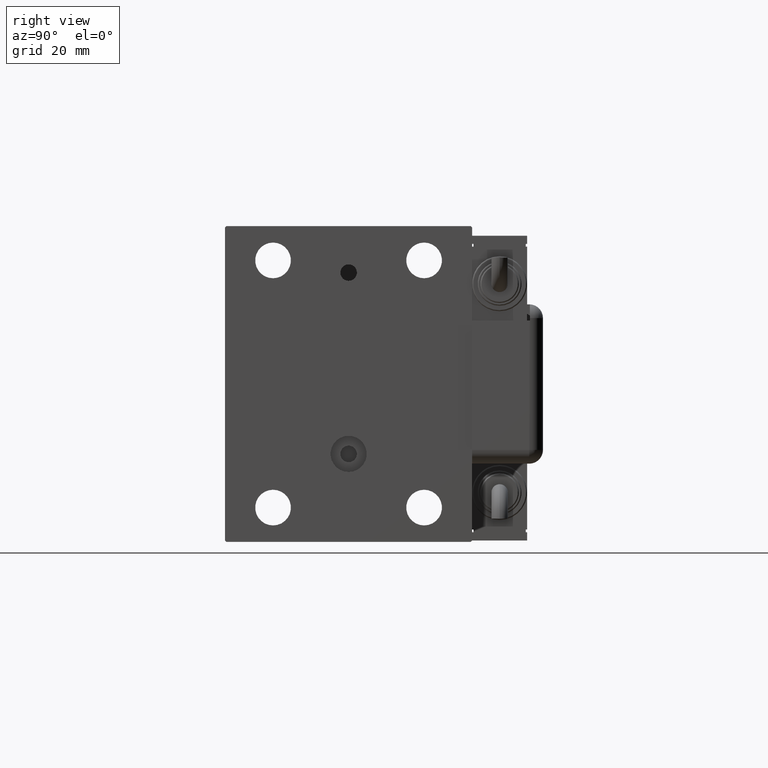
[diagram: clean part render]
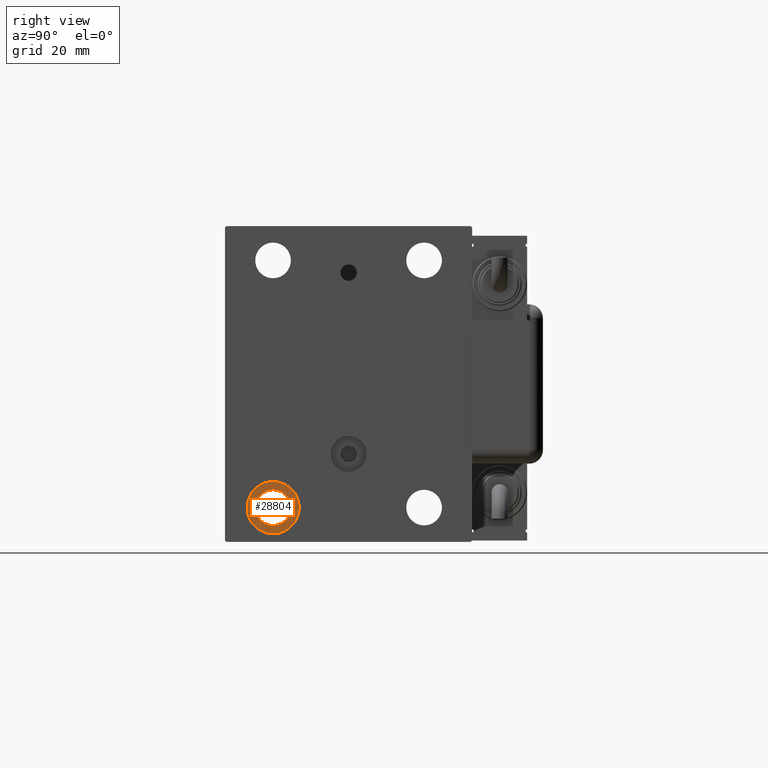
[diagram: same view with one face highlighted and labeled with its STEP entity id]
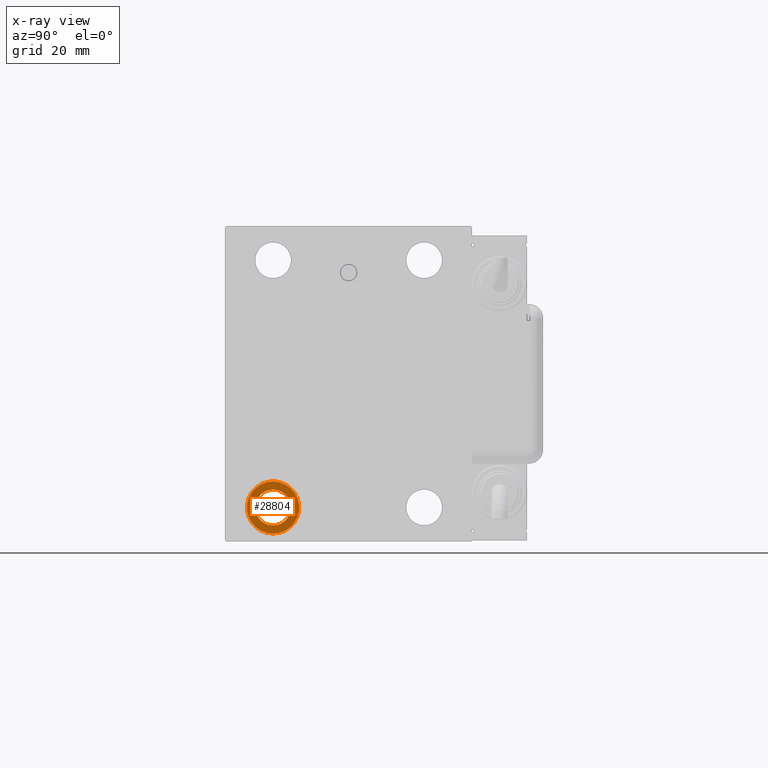
[diagram: x-ray of the same camera — body ghosted, the highlighted face saturated]
A machine part, right view. The second image highlights one B-rep face of the part: STEP entity #28804.
The next image is the same camera in x-ray: the body ghosted, the highlighted face saturated — about 0% of this face is hidden behind the body in this view.
In plain terms, the highlighted planar face has unit normal (1, 0, 0).
Its self-contained STEP definition (entity closure, byte-faithful):
#421 = CARTESIAN_POINT ( 'NONE',  ( 145.0000000000000000, -27.50000000000000000, -54.49999999999998579 ) ) ;
#466 = DIRECTION ( 'NONE',  ( 0.000000000000000000, 0.000000000000000000, 1.000000000000000000 ) ) ;
#3700 = CIRCLE ( 'NONE', #50812, 6.499999999999999112 ) ;
#4904 = CARTESIAN_POINT ( 'NONE',  ( 145.0000000000000000, -27.50000000000000000, -44.99999999999998579 ) ) ;
#5562 = CIRCLE ( 'NONE', #49823, 9.500000000000001776 ) ;
#6178 = VERTEX_POINT ( 'NONE', #51271 ) ;
#7257 = DIRECTION ( 'NONE',  ( 0.000000000000000000, 0.000000000000000000, -1.000000000000000000 ) ) ;
#8531 = AXIS2_PLACEMENT_3D ( 'NONE', #54397, #41723, #466 ) ;
#9135 = DIRECTION ( 'NONE',  ( 0.000000000000000000, 0.000000000000000000, 1.000000000000000000 ) ) ;
#9285 = EDGE_CURVE ( 'NONE', #6178, #40046, #3700, .T. ) ;
#10190 = EDGE_LOOP ( 'NONE', ( #28063, #59522 ) ) ;
#13439 = CIRCLE ( 'NONE', #32668, 9.500000000000001776 ) ;
#16454 = DIRECTION ( 'NONE',  ( 0.000000000000000000, 0.000000000000000000, -1.000000000000000000 ) ) ;
#17527 = EDGE_LOOP ( 'NONE', ( #55509, #23405 ) ) ;
#19636 = DIRECTION ( 'NONE',  ( -1.000000000000000000, -0.000000000000000000, -0.000000000000000000 ) ) ;
#20953 = DIRECTION ( 'NONE',  ( -1.000000000000000000, -0.000000000000000000, -0.000000000000000000 ) ) ;
#21424 = DIRECTION ( 'NONE',  ( -1.000000000000000000, -0.000000000000000000, -0.000000000000000000 ) ) ;
#22553 = EDGE_CURVE ( 'NONE', #24294, #52633, #5562, .T. ) ;
#23405 = ORIENTED_EDGE ( 'NONE', *, *, #9285, .T. ) ;
#24294 = VERTEX_POINT ( 'NONE', #40401 ) ;
#25791 = CARTESIAN_POINT ( 'NONE',  ( 145.0000000000000000, -27.50000000000000000, -44.99999999999998579 ) ) ;
#26708 = DIRECTION ( 'NONE',  ( -1.000000000000000000, -0.000000000000000000, -0.000000000000000000 ) ) ;
#27887 = PLANE ( 'NONE',  #8531 ) ;
#28063 = ORIENTED_EDGE ( 'NONE', *, *, #31043, .F. ) ;
#28804 = ADVANCED_FACE ( 'NONE', ( #36915, #55282 ), #27887, .T. ) ;
#31043 = EDGE_CURVE ( 'NONE', #52633, #24294, #13439, .T. ) ;
#31068 = CARTESIAN_POINT ( 'NONE',  ( 145.0000000000000000, -27.50000000000000000, -44.99999999999998579 ) ) ;
#32668 = AXIS2_PLACEMENT_3D ( 'NONE', #4904, #19636, #9135 ) ;
#35423 = CARTESIAN_POINT ( 'NONE',  ( 145.0000000000000000, -27.50000000000000000, -44.99999999999998579 ) ) ;
#35539 = CIRCLE ( 'NONE', #44181, 6.499999999999999112 ) ;
#36915 = FACE_OUTER_BOUND ( 'NONE', #10190, .T. ) ;
#40046 = VERTEX_POINT ( 'NONE', #40430 ) ;
#40401 = CARTESIAN_POINT ( 'NONE',  ( 145.0000000000000000, -27.50000000000000000, -35.49999999999998579 ) ) ;
#40430 = CARTESIAN_POINT ( 'NONE',  ( 145.0000000000000000, -27.50000000000000000, -38.49999999999998579 ) ) ;
#40538 = DIRECTION ( 'NONE',  ( 0.000000000000000000, 0.000000000000000000, 1.000000000000000000 ) ) ;
#41723 = DIRECTION ( 'NONE',  ( 1.000000000000000000, 0.000000000000000000, -0.000000000000000000 ) ) ;
#44181 = AXIS2_PLACEMENT_3D ( 'NONE', #35423, #26708, #16454 ) ;
#45633 = EDGE_CURVE ( 'NONE', #40046, #6178, #35539, .T. ) ;
#49823 = AXIS2_PLACEMENT_3D ( 'NONE', #25791, #20953, #40538 ) ;
#50812 = AXIS2_PLACEMENT_3D ( 'NONE', #31068, #21424, #7257 ) ;
#51271 = CARTESIAN_POINT ( 'NONE',  ( 145.0000000000000000, -27.50000000000000000, -51.49999999999998579 ) ) ;
#52633 = VERTEX_POINT ( 'NONE', #421 ) ;
#54397 = CARTESIAN_POINT ( 'NONE',  ( 145.0000000000000000, 0.000000000000000000, 0.000000000000000000 ) ) ;
#55282 = FACE_BOUND ( 'NONE', #17527, .T. ) ;
#55509 = ORIENTED_EDGE ( 'NONE', *, *, #45633, .T. ) ;
#59522 = ORIENTED_EDGE ( 'NONE', *, *, #22553, .F. ) ;